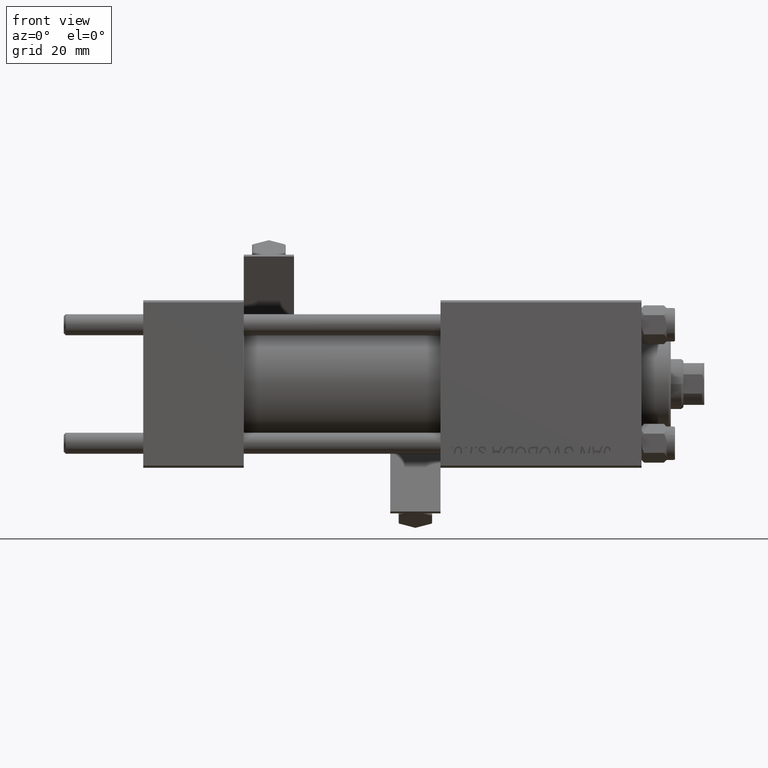
[diagram: clean part render]
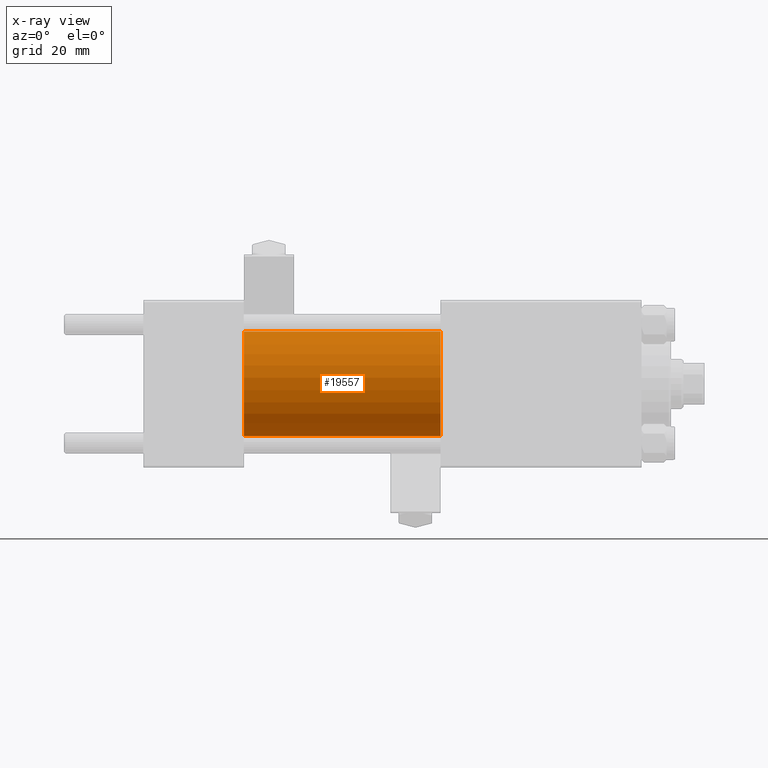
[diagram: x-ray — body ghosted, one internal face saturated and labeled with its STEP entity id]
A machine part, front view, then the same camera in x-ray: the body is ghosted and one INTERNAL B-rep face — a face not visible from any outside direction — is saturated and labeled: STEP entity #19557.
In plain terms, the highlighted cylindrical surface (partial cylindrical patch) has radius 12.5 mm, axis along (-1, -0, -0).
Its self-contained STEP definition (entity closure, byte-faithful):
#233 = EDGE_LOOP ( 'NONE', ( #25575, #41463, #20817, #25349 ) ) ;
#996 = DIRECTION ( 'NONE',  ( 1.000000000000000000, 0.000000000000000000, 0.000000000000000000 ) ) ;
#2643 = DIRECTION ( 'NONE',  ( -1.000000000000000000, -0.000000000000000000, -0.000000000000000000 ) ) ;
#6959 = DIRECTION ( 'NONE',  ( 0.000000000000000000, 0.000000000000000000, 1.000000000000000000 ) ) ;
#6992 = EDGE_CURVE ( 'NONE', #17780, #39481, #13959, .T. ) ;
#7978 = CIRCLE ( 'NONE', #26096, 12.49999999999999645 ) ;
#8463 = CARTESIAN_POINT ( 'NONE',  ( 24.00000000000000000, 0.000000000000000000, 0.000000000000000000 ) ) ;
#10820 = CYLINDRICAL_SURFACE ( 'NONE', #25761, 12.49999999999999645 ) ;
#11781 = EDGE_CURVE ( 'NONE', #21914, #39481, #40968, .T. ) ;
#12773 = CARTESIAN_POINT ( 'NONE',  ( 71.00000000000001421, 1.530808498934191127E-15, -12.49999999999999645 ) ) ;
#13945 = EDGE_CURVE ( 'NONE', #17795, #17780, #37492, .T. ) ;
#13959 = CIRCLE ( 'NONE', #42694, 12.49999999999999645 ) ;
#14151 = DIRECTION ( 'NONE',  ( 1.000000000000000000, 0.000000000000000000, 0.000000000000000000 ) ) ;
#14836 = DIRECTION ( 'NONE',  ( -1.000000000000000000, -0.000000000000000000, -0.000000000000000000 ) ) ;
#17780 = VERTEX_POINT ( 'NONE', #18049 ) ;
#17795 = VERTEX_POINT ( 'NONE', #18805 ) ;
#18049 = CARTESIAN_POINT ( 'NONE',  ( 24.00000000000000000, 0.000000000000000000, 12.49999999999999645 ) ) ;
#18805 = CARTESIAN_POINT ( 'NONE',  ( 71.00000000000001421, 0.000000000000000000, 12.49999999999999645 ) ) ;
#19557 = ADVANCED_FACE ( 'NONE', ( #39323 ), #10820, .F. ) ;
#20817 = ORIENTED_EDGE ( 'NONE', *, *, #6992, .F. ) ;
#21914 = VERTEX_POINT ( 'NONE', #12773 ) ;
#25349 = ORIENTED_EDGE ( 'NONE', *, *, #13945, .F. ) ;
#25575 = ORIENTED_EDGE ( 'NONE', *, *, #32256, .T. ) ;
#25578 = VECTOR ( 'NONE', #14836, 1000.000000000000000 ) ;
#25761 = AXIS2_PLACEMENT_3D ( 'NONE', #26515, #42196, #6959 ) ;
#26096 = AXIS2_PLACEMENT_3D ( 'NONE', #37303, #14151, #29844 ) ;
#26515 = CARTESIAN_POINT ( 'NONE',  ( 71.00000000000001421, 0.000000000000000000, 0.000000000000000000 ) ) ;
#29844 = DIRECTION ( 'NONE',  ( 0.000000000000000000, 0.000000000000000000, -1.000000000000000000 ) ) ;
#30405 = VECTOR ( 'NONE', #2643, 1000.000000000000000 ) ;
#32256 = EDGE_CURVE ( 'NONE', #17795, #21914, #7978, .T. ) ;
#33765 = CARTESIAN_POINT ( 'NONE',  ( 71.00000000000001421, 1.530808498934191127E-15, -12.49999999999999645 ) ) ;
#35135 = CARTESIAN_POINT ( 'NONE',  ( 24.00000000000000000, 1.530808498934191127E-15, -12.49999999999999645 ) ) ;
#37303 = CARTESIAN_POINT ( 'NONE',  ( 71.00000000000001421, 0.000000000000000000, 0.000000000000000000 ) ) ;
#37492 = LINE ( 'NONE', #49313, #25578 ) ;
#39323 = FACE_OUTER_BOUND ( 'NONE', #233, .T. ) ;
#39481 = VERTEX_POINT ( 'NONE', #35135 ) ;
#39833 = DIRECTION ( 'NONE',  ( 0.000000000000000000, 0.000000000000000000, -1.000000000000000000 ) ) ;
#40968 = LINE ( 'NONE', #33765, #30405 ) ;
#41463 = ORIENTED_EDGE ( 'NONE', *, *, #11781, .T. ) ;
#42196 = DIRECTION ( 'NONE',  ( -1.000000000000000000, -0.000000000000000000, -0.000000000000000000 ) ) ;
#42694 = AXIS2_PLACEMENT_3D ( 'NONE', #8463, #996, #39833 ) ;
#49313 = CARTESIAN_POINT ( 'NONE',  ( 71.00000000000001421, 0.000000000000000000, 12.49999999999999645 ) ) ;